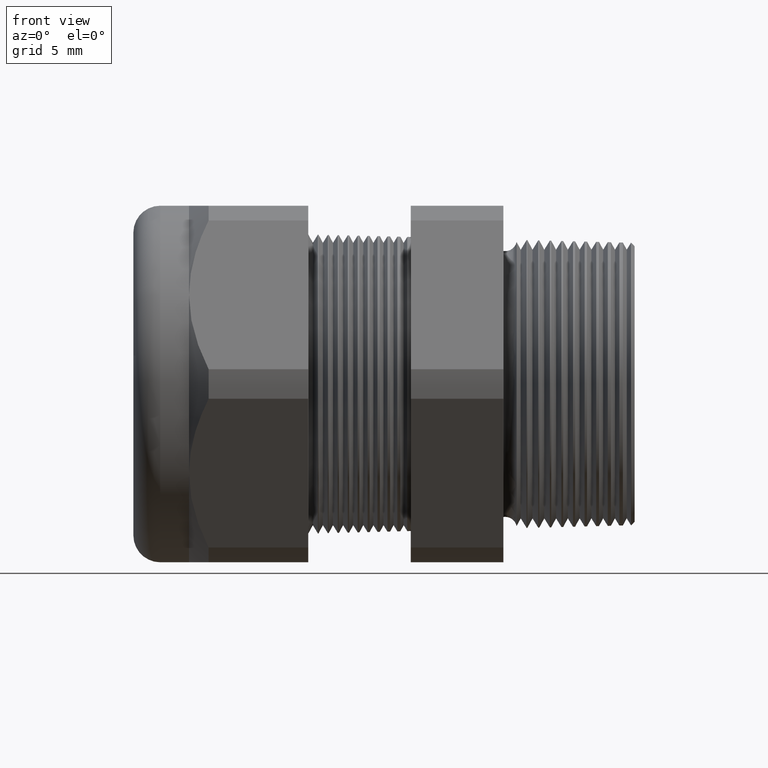
[diagram: clean part render]
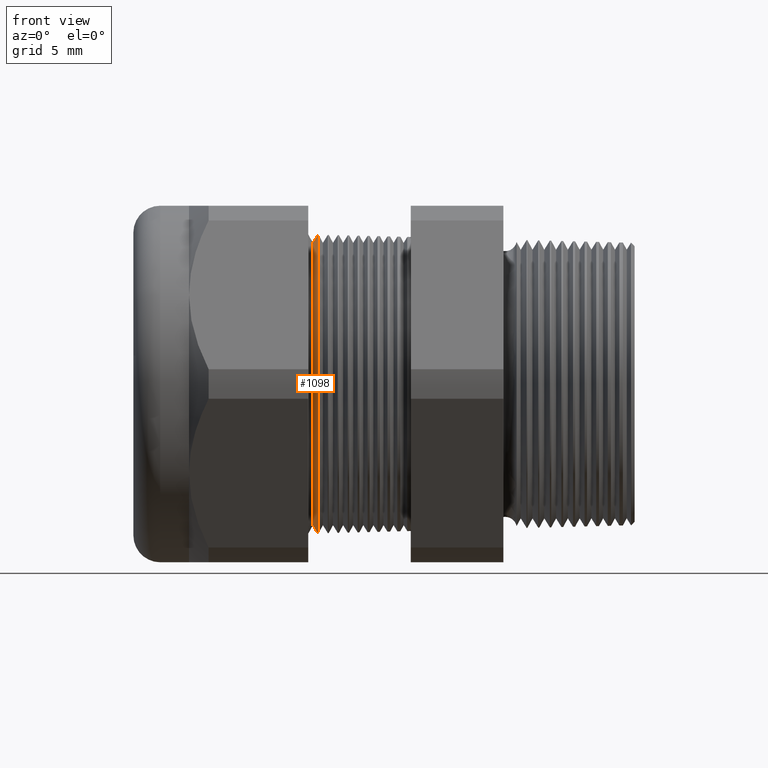
[diagram: same view with one face highlighted and labeled with its STEP entity id]
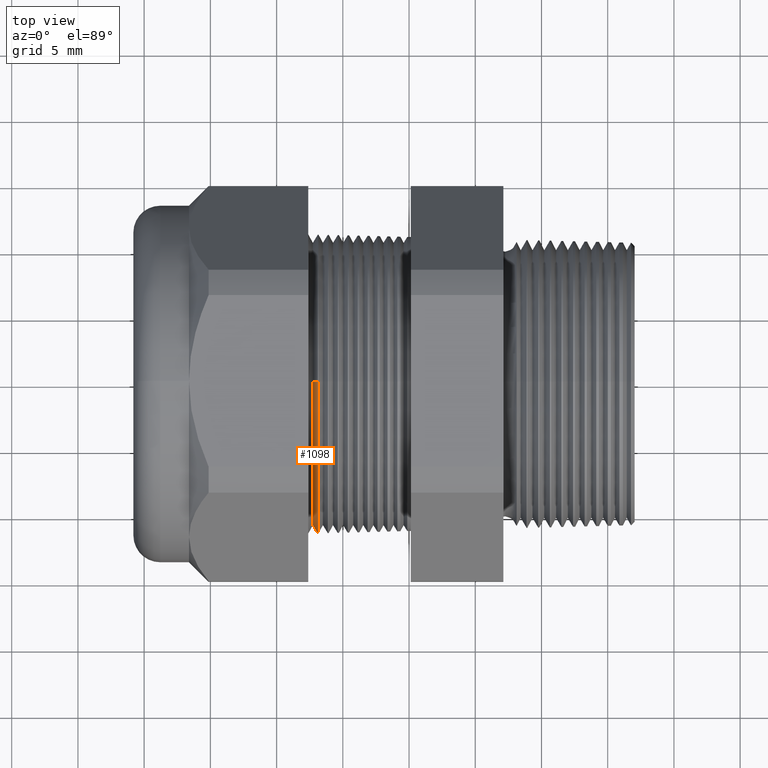
[diagram: same view with one face highlighted and labeled with its STEP entity id]
A machine part, front view. The second image highlights one B-rep face of the part: STEP entity #1098.
A second angle (top view) of the same face is appended — the face is thin or edge-on in the first view.
In plain terms, the highlighted conical surface has half-angle 58.5 deg.
Its self-contained STEP definition (entity closure, byte-faithful):
#165 = VERTEX_POINT ( 'NONE', #1925 ) ;
#167 = EDGE_CURVE ( 'NONE', #180, #165, #1924, .T. ) ;
#180 = VERTEX_POINT ( 'NONE', #1957 ) ;
#181 = VERTEX_POINT ( 'NONE', #1956 ) ;
#183 = EDGE_CURVE ( 'NONE', #181, #184, #1955, .T. ) ;
#184 = VERTEX_POINT ( 'NONE', #1951 ) ;
#662 = EDGE_CURVE ( 'NONE', #184, #165, #2889, .T. ) ;
#1045 = EDGE_CURVE ( 'NONE', #181, #180, #3606, .T. ) ;
#1098 = ADVANCED_FACE ( 'NONE', ( #3665 ), #3664, .T. ) ;
#1099 = EDGE_LOOP ( 'NONE', ( #1100, #1101, #1102, #1103 ) ) ;
#1100 = ORIENTED_EDGE ( 'NONE', *, *, #183, .F. ) ;
#1101 = ORIENTED_EDGE ( 'NONE', *, *, #1045, .T. ) ;
#1102 = ORIENTED_EDGE ( 'NONE', *, *, #167, .T. ) ;
#1103 = ORIENTED_EDGE ( 'NONE', *, *, #662, .F. ) ;
#1921 = DIRECTION ( 'NONE',  ( 0.5224985647159303700, 0.0000000000000000000, -0.8526401643541036100 ) ) ;
#1922 = VECTOR ( 'NONE', #1921, 39.37007874015748100 ) ;
#1923 = CARTESIAN_POINT ( 'NONE',  ( -0.8765405736958176200, 0.0000000000000000000, -0.4196307351718083200 ) ) ;
#1924 = LINE ( 'NONE', #1923, #1922 ) ;
#1925 = CARTESIAN_POINT ( 'NONE',  ( -0.8614573393463209600, 5.440424048472154400E-017, -0.4442443365923945400 ) ) ;
#1951 = CARTESIAN_POINT ( 'NONE',  ( -0.8614573393463209600, 0.0000000000000000000, 0.4442443365923945400 ) ) ;
#1952 = DIRECTION ( 'NONE',  ( 0.5224985647159303700, 1.044183048100726200E-016, 0.8526401643541036100 ) ) ;
#1953 = VECTOR ( 'NONE', #1952, 39.37007874015748100 ) ;
#1954 = CARTESIAN_POINT ( 'NONE',  ( -0.8765405736958176200, 5.138994366520057100E-017, 0.4196307351718083200 ) ) ;
#1955 = LINE ( 'NONE', #1954, #1953 ) ;
#1956 = CARTESIAN_POINT ( 'NONE',  ( -0.8765405736958176200, 0.0000000000000000000, 0.4196307351718083200 ) ) ;
#1957 = CARTESIAN_POINT ( 'NONE',  ( -0.8765405736958176200, 5.294336311362889800E-017, -0.4196307351718083200 ) ) ;
#2885 = DIRECTION ( 'NONE',  ( 0.0000000000000000000, 0.0000000000000000000, -1.000000000000000000 ) ) ;
#2886 = DIRECTION ( 'NONE',  ( 1.000000000000000000, 0.0000000000000000000, 0.0000000000000000000 ) ) ;
#2887 = CARTESIAN_POINT ( 'NONE',  ( -0.8614573393463209600, 0.0000000000000000000, 0.0000000000000000000 ) ) ;
#2888 = AXIS2_PLACEMENT_3D ( 'NONE', #2887, #2886, #2885 ) ;
#2889 = CIRCLE ( 'NONE', #2888, 0.4442443365923945400 ) ;
#3598 = DIRECTION ( 'NONE',  ( 0.0000000000000000000, 0.0000000000000000000, -1.000000000000000000 ) ) ;
#3599 = DIRECTION ( 'NONE',  ( 1.000000000000000000, 0.0000000000000000000, 0.0000000000000000000 ) ) ;
#3600 = CARTESIAN_POINT ( 'NONE',  ( -0.8765405736958176200, 0.0000000000000000000, 0.0000000000000000000 ) ) ;
#3601 = AXIS2_PLACEMENT_3D ( 'NONE', #3600, #3599, #3598 ) ;
#3606 = CIRCLE ( 'NONE', #3601, 0.4196307351718083200 ) ;
#3660 = DIRECTION ( 'NONE',  ( 0.0000000000000000000, 0.0000000000000000000, -1.000000000000000000 ) ) ;
#3661 = DIRECTION ( 'NONE',  ( 1.000000000000000000, 0.0000000000000000000, 0.0000000000000000000 ) ) ;
#3662 = AXIS2_PLACEMENT_3D ( 'NONE', #3670, #3661, #3660 ) ;
#3664 = CONICAL_SURFACE ( 'NONE', #3662, 0.4196307351718083200, 1.021017612416704500 ) ;
#3665 = FACE_OUTER_BOUND ( 'NONE', #1099, .T. ) ;
#3670 = CARTESIAN_POINT ( 'NONE',  ( -0.8765405736958176200, 0.0000000000000000000, 0.0000000000000000000 ) ) ;